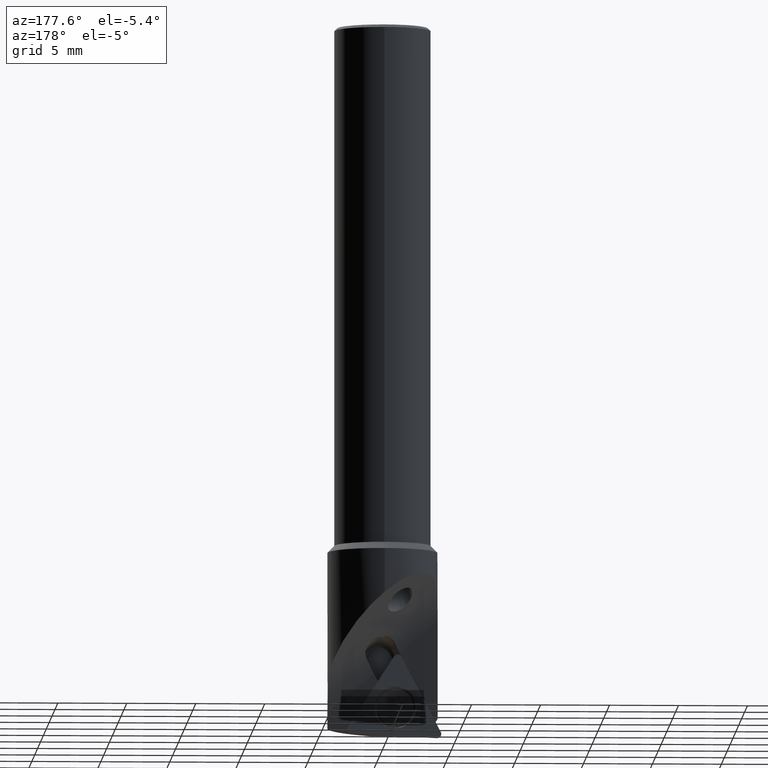
[diagram: clean part render]
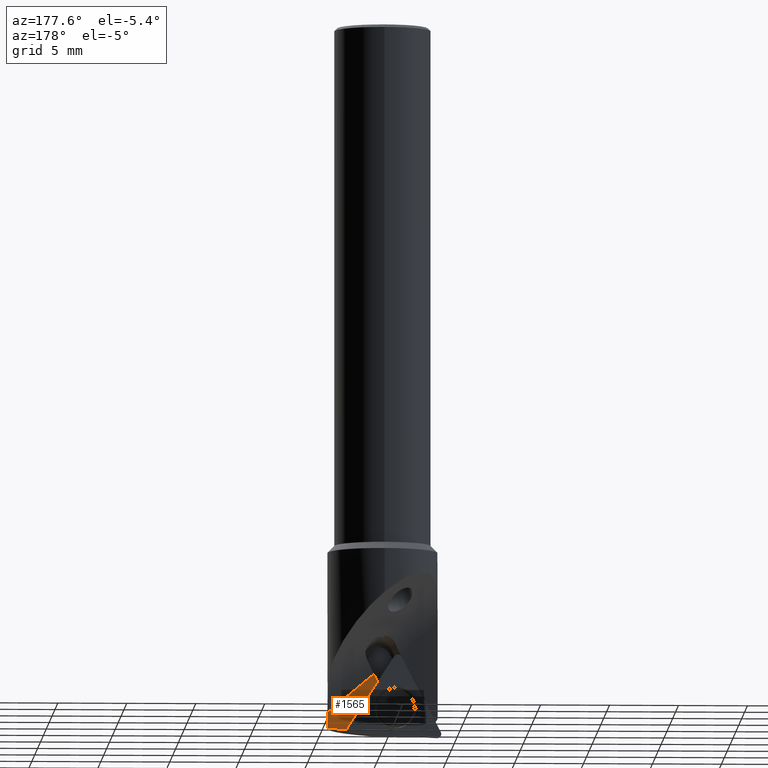
[diagram: same view with one face highlighted and labeled with its STEP entity id]
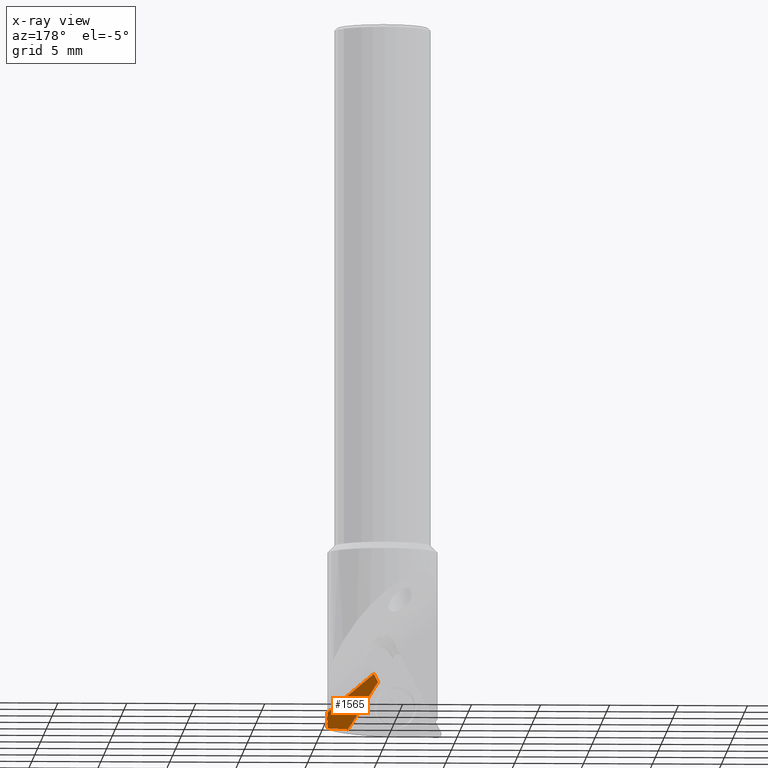
[diagram: x-ray of the same camera — body ghosted, the highlighted face saturated]
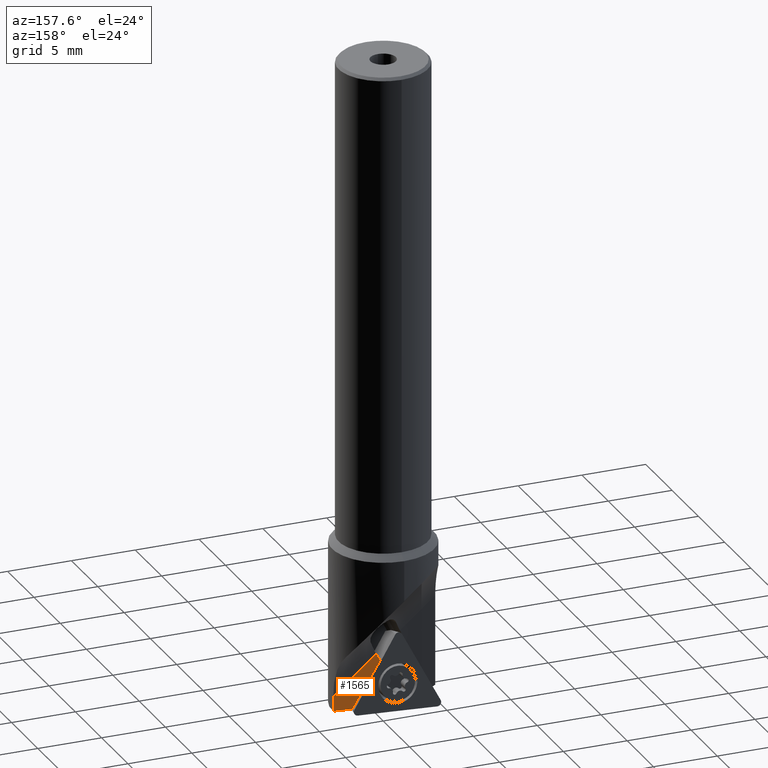
[diagram: same view with one face highlighted and labeled with its STEP entity id]
A machine part, auxiliary view. The second image highlights one B-rep face of the part: STEP entity #1565.
The next image is the same camera in x-ray: the body ghosted, the highlighted face saturated — about 0% of this face is hidden behind the body in this view.
A second angle (auxiliary view) of the same face is appended — the face is thin or edge-on in the first view.
In plain terms, the highlighted planar face has unit normal (0, -1, 0).
Its self-contained STEP definition (entity closure, byte-faithful):
#677=EDGE_CURVE('NONE',#1573,#1355,#1890,.T.);
#1009=EDGE_CURVE('NONE',#1573,#1035,#2258,.T.);
#1017=VERTEX_POINT('NONE',#2267);
#1035=VERTEX_POINT('NONE',#2285);
#1261=EDGE_CURVE('NONE',#1017,#1773,#2535,.T.);
#1355=VERTEX_POINT('NONE',#2639);
#1565=ADVANCED_FACE('NONE',(#2873),#2874,.F.);
#1573=VERTEX_POINT('NONE',#2882);
#1701=EDGE_CURVE('NONE',#1773,#1355,#3025,.T.);
#1773=VERTEX_POINT('NONE',#3103);
#1811=EDGE_CURVE('NONE',#1017,#1035,#3144,.T.);
#1890=LINE('',#3247,#3248);
#2258=LINE('',#3795,#3796);
#2267=CARTESIAN_POINT('',(3.99499687108763,0.199999999999999,-16.2854921537674));
#2285=CARTESIAN_POINT('',(2.4974104048823,0.199999999999999,-16.3636778598889));
#2535=LINE('',#4258,#4259);
#2639=CARTESIAN_POINT('',(0.619429978400519,0.2,-12.319763466416));
#2873=FACE_OUTER_BOUND('',#4788,.T.);
#2874=PLANE('',#4789);
#2882=CARTESIAN_POINT('',(0.321319243954075,0.2,-12.9070736180854));
#3025=LINE('',#5029,#5030);
#3103=CARTESIAN_POINT('',(3.99499687108764,0.199999999999999,-15.152200401084));
#3144=LINE('',#5220,#5221);
#3247=CARTESIAN_POINT('',(1.43020511063097,0.2,-10.7224494120791));
#3248=VECTOR('',#5308,1000.0);
#3795=CARTESIAN_POINT('',(3.6464916733175,0.199999999999999,-18.1889319016157));
#3796=VECTOR('',#5745,1000.0);
#4258=CARTESIAN_POINT('',(3.99499687108763,0.2,-1.11022302462516E-017));
#4259=VECTOR('',#6056,1000.0);
#4788=EDGE_LOOP('',(#6484,#6485,#6486,#6487,#6488));
#4789=AXIS2_PLACEMENT_3D('',#6489,#6490,#6491);
#5029=CARTESIAN_POINT('',(11.4906666467847,0.199999999999999,-21.441814145298));
#5030=VECTOR('',#6650,1000.0);
#5220=CARTESIAN_POINT('',(4.1330044242329,0.199999999999999,-16.2782870819827));
#5221=VECTOR('',#6784,1000.0);
#5308=DIRECTION('',(0.452617380359999,4.94995617698438E-017,0.891704831766685));
#5745=DIRECTION('',(0.532762550253179,-4.69771317637764E-017,-0.846264772425113));
#6056=DIRECTION('',(0.0,5.55111512312578E-017,1.0));
#6484=ORIENTED_EDGE('',*,*,#1261,.F.);
#6485=ORIENTED_EDGE('',*,*,#1811,.T.);
#6486=ORIENTED_EDGE('',*,*,#1009,.F.);
#6487=ORIENTED_EDGE('',*,*,#677,.T.);
#6488=ORIENTED_EDGE('',*,*,#1701,.F.);
#6489=CARTESIAN_POINT('',(4.8177612973609,0.199999999999998,-29.3942730685151));
#6490=DIRECTION('',(0.0,-1.0,5.55111512312578E-017));
#6491=DIRECTION('',(-1.0,0.0,0.0));
#6650=DIRECTION('',(-0.766044443118982,3.5681880210888E-017,0.642787609686535));
#6784=DIRECTION('',(-0.998639952047432,-2.89499958297542E-018,-0.0521368024978717));